MODEL slx_27a2609bdb12
KIND model
CONFIG AbsTol = auto
CONFIG EnableMultiTasking = off
CONFIG FixedStep = auto
CONFIG InitFcn = a=30;\nhh=0.5/6;
CONFIG MaxStep = auto
CONFIG MinStep = auto
CONFIG RelTol = 1e-3
CONFIG SampleTimeConstraint = Unconstrained
CONFIG Solver = VariableStepDiscrete
CONFIG SolverName = VariableStepDiscrete
CONFIG StartTime = 0.0
CONFIG StopTime = 10
BLOCK [Constant] Constant
  Value = 183.25957125
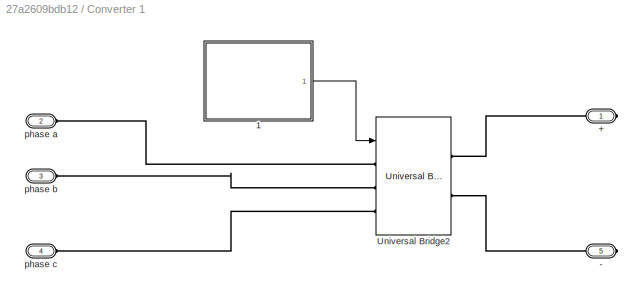
BLOCK [SubSystem] Converter 1
  Ports = [0, 0, 0, 0, 0, 3, 2]
  RequestExecContextInheritance = off
BLOCK [PMIOPort] Converter 1/+
  Side = Right
BLOCK [PMIOPort] Converter 1/-
  Port = 5
  Side = Right
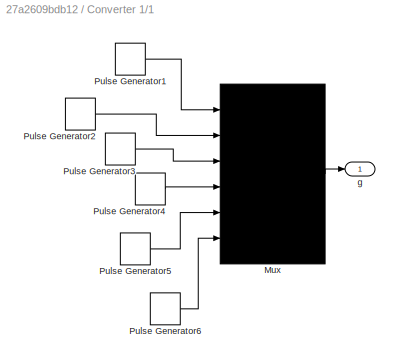
BLOCK [SubSystem] Converter 1/1
  Ports = [0, 1]
  RequestExecContextInheritance = off
BLOCK [Mux] Converter 1/1/Mux
  DisplayOption = bar
  Inputs = 6
  Ports = [6, 1]
BLOCK [DiscretePulseGenerator] Converter 1/1/Pulse Generator1
  Period = 0.02
  PhaseDelay = (30+a)*((1/50)/360)
  Ports = [0, 1]
  PulseType = Time based
  PulseWidth = 14
BLOCK [DiscretePulseGenerator] Converter 1/1/Pulse Generator2
  Period = 0.02
  PhaseDelay = (90+a)*((1/50)/360)
  Ports = [0, 1]
  PulseType = Time based
  PulseWidth = 14
BLOCK [DiscretePulseGenerator] Converter 1/1/Pulse Generator3
  Period = 0.02
  PhaseDelay = (150+a)*((1/50)/360)
  Ports = [0, 1]
  PulseType = Time based
  PulseWidth = 14
BLOCK [DiscretePulseGenerator] Converter 1/1/Pulse Generator4
  Period = 0.02
  PhaseDelay = (210+a)*((1/50)/360)
  Ports = [0, 1]
  PulseType = Time based
  PulseWidth = 14
BLOCK [DiscretePulseGenerator] Converter 1/1/Pulse Generator5
  Period = 0.02
  PhaseDelay = (270+a)*((1/50)/360)
  Ports = [0, 1]
  PulseType = Time based
  PulseWidth = 14
BLOCK [DiscretePulseGenerator] Converter 1/1/Pulse Generator6
  Period = 0.02
  PhaseDelay = (330+a)*((1/50)/360)
  Ports = [0, 1]
  PulseType = Time based
  PulseWidth = 14
BLOCK [Outport] Converter 1/1/g
  IconDisplay = Port number
BLOCK [Reference] Converter 1/Universal Bridge2  REF=powerlib/Power
Electronics/Universal Bridge
  Ports = [1, 0, 0, 0, 0, 3, 2]
  SourceBlock = powerlib/Power\nElectronics/Universal Bridge
  SourceProductBaseCode = PS
  SourceProductName = Simscape Power Systems
  SourceType = Universal Bridge
BLOCK [PMIOPort] Converter 1/phase a
  Port = 2
  Side = Left
BLOCK [PMIOPort] Converter 1/phase b
  Port = 3
  Side = Left
BLOCK [PMIOPort] Converter 1/phase c
  Port = 4
  Side = Left
BLOCK [Reference] Current Measurement  REF=powerlib/Measurements/Current Measurement
  Ports = [0, 1, 0, 0, 0, 1, 1]
  SourceBlock = powerlib/Measurements/Current Measurement
  SourceProductBaseCode = PS
  SourceProductName = Simscape Power Systems
  SourceType = Current Measurement
  UserDataPersistent = on
BLOCK [Reference] DC Machine  REF=powerlib/Machines/DC Machine
  Ports = [1, 1, 0, 0, 0, 2, 2]
  SourceBlock = powerlib/Machines/DC Machine
  SourceProductBaseCode = PS
  SourceProductName = Simscape Power Systems
  SourceType = DC machine
BLOCK [Reference] DC Voltage Source  REF=powerlib/Electrical
Sources/DC Voltage Source
  Ports = [0, 0, 0, 0, 0, 1, 1]
  SourceBlock = powerlib/Electrical\nSources/DC Voltage Source
  SourceProductBaseCode = PS
  SourceProductName = Simscape Power Systems
  SourceType = DC Voltage Source
BLOCK [Scope] Scope
  Floating = off
  NumInputPorts = 3
  Ports = [3]
  ScopeSpecificationString = Simulink.scopes.TimeScopeBlockCfg('CurrentConfiguration', extmgr.ConfigurationSet(extmgr.Configuration('Core','General UI',true),extmgr.Configuration('Core','Source UI',true),extmgr.Configuration('Sources','WiredSimulink',true,'DataLoggingVariableName','ScopeData2'),extmgr.Configuration('Visuals','Time Domain',true,'SerializedDisplays',{struct('MinYLimReal','0','MaxYLimReal','480','YLabelReal','',...<+2776ch>
BLOCK [Scope] Scope1
  Floating = off
  NumInputPorts = 1
  Ports = [1]
  ScopeSpecificationString = Simulink.scopes.TimeScopeBlockCfg('CurrentConfiguration', extmgr.ConfigurationSet(extmgr.Configuration('Core','General UI',true),extmgr.Configuration('Core','Source UI',true),extmgr.Configuration('Sources','WiredSimulink',true,'DataLoggingVariableName','ScopeData1'),extmgr.Configuration('Visuals','Time Domain',true,'SerializedDisplays',{struct('MinYLimReal','-387.34034','MaxYLimReal','667.61579','...<+1469ch>
BLOCK [Scope] Scope2
  Floating = off
  NumInputPorts = 1
  Ports = [1]
  ScopeSpecificationString = Simulink.scopes.TimeScopeBlockCfg('CurrentConfiguration', extmgr.ConfigurationSet(extmgr.Configuration('Core','General UI',true),extmgr.Configuration('Core','Source UI',true),extmgr.Configuration('Sources','WiredSimulink',true,'DataLoggingVariableName','ScopeData1'),extmgr.Configuration('Visuals','Time Domain',true,'SerializedDisplays',{struct('MinYLimReal','0','MaxYLimReal','6','YLabelReal','','M...<+1443ch>
BLOCK [Reference] Series RLC Branch1  REF=powerlib/Elements/Series RLC Branch
  Ports = [0, 0, 0, 0, 0, 1, 1]
  SourceBlock = powerlib/Elements/Series RLC Branch
  SourceProductBaseCode = PS
  SourceProductName = Simscape Power Systems
  SourceType = Series RLC Branch
BLOCK [Reference] Series RLC Branch2  REF=powerlib/Elements/Series RLC Branch
  Ports = [0, 0, 0, 0, 0, 1, 1]
  SourceBlock = powerlib/Elements/Series RLC Branch
  SourceProductBaseCode = PS
  SourceProductName = Simscape Power Systems
  SourceType = Series RLC Branch
BLOCK [Reference] Series RLC Branch4  REF=powerlib/Elements/Series RLC Branch
  Ports = [0, 0, 0, 0, 0, 1, 1]
  SourceBlock = powerlib/Elements/Series RLC Branch
  SourceProductBaseCode = PS
  SourceProductName = Simscape Power Systems
  SourceType = Series RLC Branch
BLOCK [Reference] Series RLC Branch5  REF=powerlib/Elements/Series RLC Branch
  Ports = [0, 0, 0, 0, 0, 1, 1]
  SourceBlock = powerlib/Elements/Series RLC Branch
  SourceProductBaseCode = PS
  SourceProductName = Simscape Power Systems
  SourceType = Series RLC Branch
BLOCK [Reference] Three-Phase Source  REF=powerlib/Electrical
Sources/Three-Phase Source
  Ports = [0, 0, 0, 0, 0, 0, 3]
  SourceBlock = powerlib/Electrical\nSources/Three-Phase Source
  SourceProductBaseCode = PS
  SourceProductName = Simscape Power Systems
  SourceType = Three-Phase Source
BLOCK [Reference] Voltage Measurement  REF=powerlib/Measurements/Voltage Measurement
  Ports = [0, 1, 0, 0, 0, 2]
  SourceBlock = powerlib/Measurements/Voltage Measurement
  SourceProductBaseCode = PS
  SourceProductName = Simscape Power Systems
  SourceType = Voltage Measurement
  UserDataPersistent = on
BLOCK [Reference] Voltage Measurement1  REF=powerlib/Measurements/Voltage Measurement
  Ports = [0, 1, 0, 0, 0, 2]
  SourceBlock = powerlib/Measurements/Voltage Measurement
  SourceProductBaseCode = PS
  SourceProductName = Simscape Power Systems
  SourceType = Voltage Measurement
  UserDataPersistent = on
BLOCK [Reference] Voltage Measurement2  REF=powerlib/Measurements/Voltage Measurement
  Ports = [0, 1, 0, 0, 0, 2]
  SourceBlock = powerlib/Measurements/Voltage Measurement
  SourceProductBaseCode = PS
  SourceProductName = Simscape Power Systems
  SourceType = Voltage Measurement
  UserDataPersistent = on
BLOCK [Reference] Voltage Measurement3  REF=powerlib/Measurements/Voltage Measurement
  Ports = [0, 1, 0, 0, 0, 2]
  SourceBlock = powerlib/Measurements/Voltage Measurement
  SourceProductBaseCode = PS
  SourceProductName = Simscape Power Systems
  SourceType = Voltage Measurement
  UserDataPersistent = on
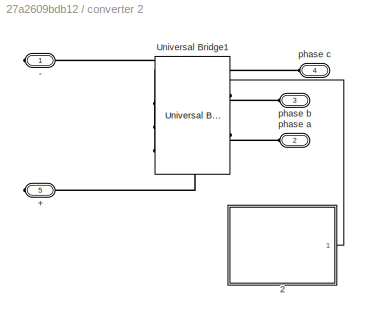
BLOCK [SubSystem] converter 2
  Ports = [0, 0, 0, 0, 0, 3, 2]
  RequestExecContextInheritance = off
BLOCK [PMIOPort] converter 2/+
  Port = 5
  Side = Right
BLOCK [PMIOPort] converter 2/-
  Side = Right
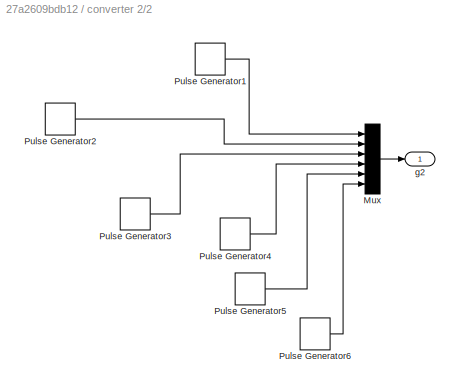
BLOCK [SubSystem] converter 2/2
  Ports = [0, 1]
  RequestExecContextInheritance = off
BLOCK [Mux] converter 2/2/Mux
  DisplayOption = bar
  Inputs = 6
  Ports = [6, 1]
BLOCK [DiscretePulseGenerator] converter 2/2/Pulse Generator1
  Period = 0.02
  PhaseDelay = (30+(180-a))*((1/50)/360)
  Ports = [0, 1]
  PulseType = Time based
  PulseWidth = 14
BLOCK [DiscretePulseGenerator] converter 2/2/Pulse Generator2
  Period = 0.02
  PhaseDelay = (90+(180-a))*((1/50)/360)
  Ports = [0, 1]
  PulseType = Time based
  PulseWidth = 14
BLOCK [DiscretePulseGenerator] converter 2/2/Pulse Generator3
  Period = 0.02
  PhaseDelay = (150+(180-a))*((1/50)/360)
  Ports = [0, 1]
  PulseType = Time based
  PulseWidth = 14
BLOCK [DiscretePulseGenerator] converter 2/2/Pulse Generator4
  Period = 0.02
  PhaseDelay = (210+(180-a))*((1/50)/360)
  Ports = [0, 1]
  PulseType = Time based
  PulseWidth = 14
BLOCK [DiscretePulseGenerator] converter 2/2/Pulse Generator5
  Period = 0.02
  PhaseDelay = (270+(180-a))*((1/50)/360)
  Ports = [0, 1]
  PulseType = Time based
  PulseWidth = 14
BLOCK [DiscretePulseGenerator] converter 2/2/Pulse Generator6
  Period = 0.02
  PhaseDelay = (330+(180-a))*((1/50)/360)
  Ports = [0, 1]
  PulseType = Time based
  PulseWidth = 14
BLOCK [Outport] converter 2/2/g2
  IconDisplay = Port number
BLOCK [Reference] converter 2/Universal Bridge1  REF=powerlib/Power
Electronics/Universal Bridge
  Ports = [1, 0, 0, 0, 0, 3, 2]
  SourceBlock = powerlib/Power\nElectronics/Universal Bridge
  SourceProductBaseCode = PS
  SourceProductName = Simscape Power Systems
  SourceType = Universal Bridge
BLOCK [PMIOPort] converter 2/phase a
  Port = 2
  Side = Left
BLOCK [PMIOPort] converter 2/phase b
  Port = 3
  Side = Left
BLOCK [PMIOPort] converter 2/phase c
  Port = 4
  Side = Left
BLOCK [Reference] powergui  REF=powerlib/powergui
  Ports = []
  Priority = 1
  SourceBlock = powerlib/powergui
  SourceProductBaseCode = PS
  SourceProductName = Simscape Power Systems
  SourceType = PSB option menu block
ANNOTATION (root): moudled by Mohammad Alshamaa Damascus university, Syria Email: <email>
ANNOTATION (root): the firing angle for both of converters is a, add a in command window to edit the angle.
LINE Constant:1 -> DC Machine:1
LINE Converter 1/1/Mux:1 -> Converter 1/1/g:1
LINE Converter 1/1/Pulse Generator1:1 -> Converter 1/1/Mux:1
LINE Converter 1/1/Pulse Generator2:1 -> Converter 1/1/Mux:2
LINE Converter 1/1/Pulse Generator3:1 -> Converter 1/1/Mux:3
LINE Converter 1/1/Pulse Generator4:1 -> Converter 1/1/Mux:4
LINE Converter 1/1/Pulse Generator5:1 -> Converter 1/1/Mux:5
LINE Converter 1/1/Pulse Generator6:1 -> Converter 1/1/Mux:6
LINE Converter 1/1:1 -> Converter 1/Universal Bridge2:1
LINE Current Measurement:1 -> Scope2:1
LINE Voltage Measurement1:1 -> Scope:3
LINE Voltage Measurement2:1 -> Scope:1
LINE Voltage Measurement3:1 -> Scope1:1
LINE Voltage Measurement:1 -> Scope:2
LINE converter 2/2/Mux:1 -> converter 2/2/g2:1
LINE converter 2/2/Pulse Generator1:1 -> converter 2/2/Mux:1
LINE converter 2/2/Pulse Generator2:1 -> converter 2/2/Mux:2
LINE converter 2/2/Pulse Generator3:1 -> converter 2/2/Mux:3
LINE converter 2/2/Pulse Generator4:1 -> converter 2/2/Mux:4
LINE converter 2/2/Pulse Generator5:1 -> converter 2/2/Mux:5
LINE converter 2/2/Pulse Generator6:1 -> converter 2/2/Mux:6
LINE converter 2/2:1 -> converter 2/Universal Bridge1:1
PLINE Converter 1/+:RConn1 -- Converter 1/Universal Bridge2:RConn1
PLINE Converter 1/-:RConn1 -- Converter 1/Universal Bridge2:RConn2
PLINE Converter 1/Universal Bridge2:LConn1 -- Converter 1/phase a:RConn1
PLINE Converter 1/Universal Bridge2:LConn2 -- Converter 1/phase b:RConn1
PLINE Converter 1/Universal Bridge2:LConn3 -- Converter 1/phase c:RConn1
PNET net1: Converter 1:LConn1 -- Three-Phase Source:RConn1 -- converter 2:LConn1
PNET net2: Converter 1:LConn2 -- Three-Phase Source:RConn2 -- converter 2:LConn2
PNET net3: Converter 1:LConn3 -- Three-Phase Source:RConn3 -- converter 2:LConn3
PLINE Converter 1:RConn1 -- Current Measurement:LConn1
PNET net4: Converter 1:RConn2 -- Series RLC Branch4:LConn1 -- Voltage Measurement:LConn2
PNET net5: Current Measurement:RConn1 -- Series RLC Branch1:LConn1 -- Voltage Measurement3:LConn1 -- Voltage Measurement:LConn1
PNET net6: DC Machine:LConn1 -- Series RLC Branch1:RConn1 -- Series RLC Branch2:LConn1 -- Voltage Measurement2:LConn1
PLINE DC Machine:LConn2 -- DC Voltage Source:RConn1
PNET net7: DC Machine:RConn1 -- Series RLC Branch4:RConn1 -- Series RLC Branch5:LConn1 -- Voltage Measurement2:LConn2
PLINE DC Machine:RConn2 -- DC Voltage Source:LConn1
PNET net8: Series RLC Branch2:RConn1 -- Voltage Measurement1:LConn1 -- Voltage Measurement3:LConn2 -- converter 2:RConn1
PNET net9: Series RLC Branch5:RConn1 -- Voltage Measurement1:LConn2 -- converter 2:RConn2
PLINE converter 2/+:RConn1 -- converter 2/Universal Bridge1:RConn1
PLINE converter 2/-:RConn1 -- converter 2/Universal Bridge1:RConn2
PLINE converter 2/Universal Bridge1:LConn1 -- converter 2/phase a:RConn1
PLINE converter 2/Universal Bridge1:LConn2 -- converter 2/phase b:RConn1
PLINE converter 2/Universal Bridge1:LConn3 -- converter 2/phase c:RConn1
note: PNET lines group multi-terminal physical nets as a canonical sorted terminal list (undirected conserving connections); 2-terminal nets keep the pairwise PLINE form
